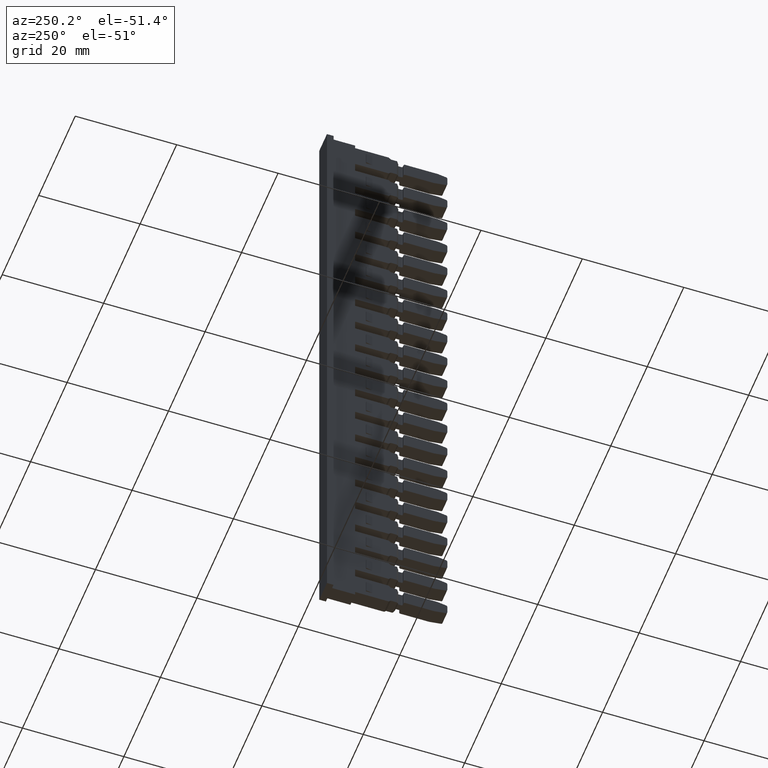
[diagram: clean part render]
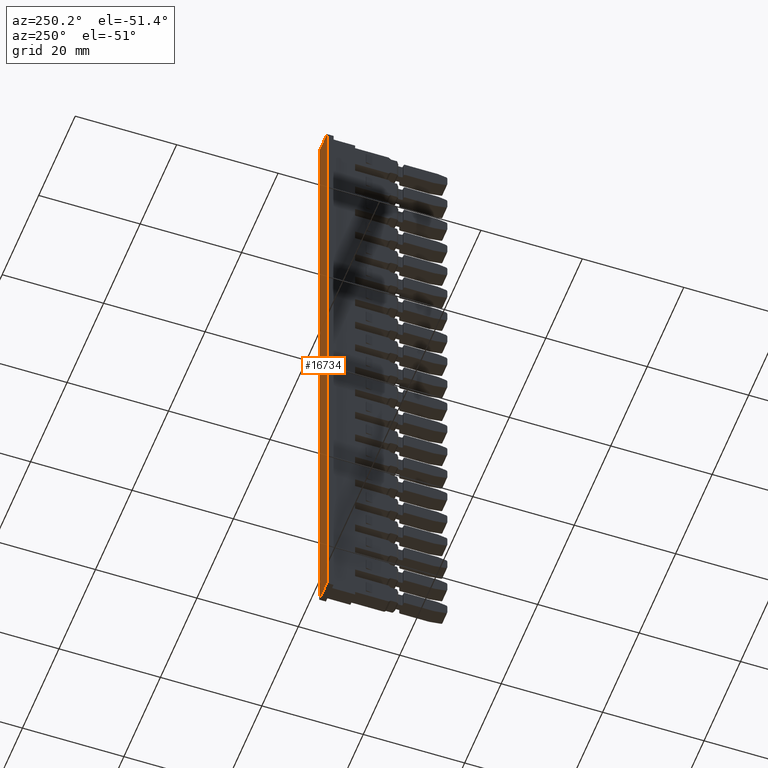
[diagram: same view with one face highlighted and labeled with its STEP entity id]
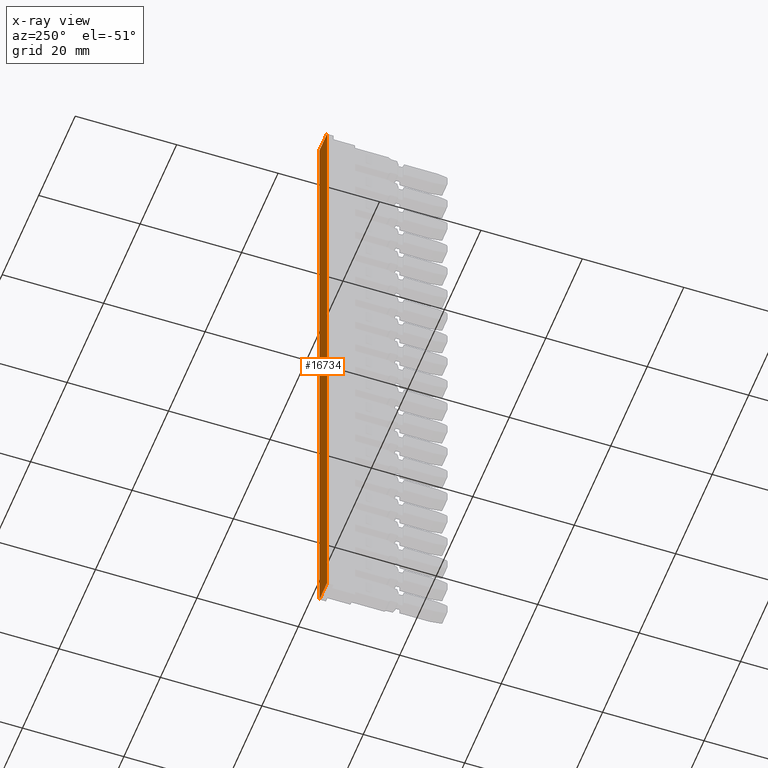
[diagram: x-ray of the same camera — body ghosted, the highlighted face saturated]
A machine part, auxiliary view. The second image highlights one B-rep face of the part: STEP entity #16734.
The next image is the same camera in x-ray: the body ghosted, the highlighted face saturated — about 0% of this face is hidden behind the body in this view.
In plain terms, the highlighted planar face has unit normal (-0, -1, -0).
Its self-contained STEP definition (entity closure, byte-faithful):
#313 = VECTOR ( 'NONE', #13372, 1000.000000000000200 ) ;
#319 = VECTOR ( 'NONE', #13172, 1000.000000000000000 ) ;
#327 = VECTOR ( 'NONE', #13360, 1000.000000000000000 ) ;
#368 = AXIS2_PLACEMENT_3D ( 'NONE', #11932, #11926, #11922 ) ;
#2055 = VECTOR ( 'NONE', #3019, 1000.000000000000000 ) ;
#2974 = LINE ( 'NONE', #3032, #2055 ) ;
#3019 = DIRECTION ( 'NONE',  ( -5.379506530252374700E-033, -5.672277992797063800E-028, 1.000000000000000000 ) ) ;
#3032 = CARTESIAN_POINT ( 'NONE',  ( 1394.182440319829500, 1077.957091196377200, 63.60600222243470400 ) ) ;
#7105 = EDGE_CURVE ( 'NONE', #8284, #8256, #2974, .T. ) ;
#7575 = EDGE_CURVE ( 'NONE', #12866, #12811, #13054, .T. ) ;
#7604 = EDGE_CURVE ( 'NONE', #8284, #12811, #13278, .T. ) ;
#7611 = EDGE_CURVE ( 'NONE', #12866, #8256, #13422, .T. ) ;
#8256 = VERTEX_POINT ( 'NONE', #14058 ) ;
#8284 = VERTEX_POINT ( 'NONE', #14100 ) ;
#9616 = EDGE_LOOP ( 'NONE', ( #22303, #22288, #22273, #22267 ) ) ;
#11893 = PLANE ( 'NONE',  #368 ) ;
#11907 = FACE_OUTER_BOUND ( 'NONE', #9616, .T. ) ;
#11922 = DIRECTION ( 'NONE',  ( 0.9999999999550282000, -9.483855916345691600E-006, 0.0000000000000000000 ) ) ;
#11926 = DIRECTION ( 'NONE',  ( -9.483855916345693300E-006, -0.9999999999550283100, -5.672277993052155700E-028 ) ) ;
#11932 = CARTESIAN_POINT ( 'NONE',  ( 1388.404219510060100, 1077.957145996190800, 63.60600222243470400 ) ) ;
#12811 = VERTEX_POINT ( 'NONE', #14669 ) ;
#12866 = VERTEX_POINT ( 'NONE', #14805 ) ;
#13054 = LINE ( 'NONE', #13221, #319 ) ;
#13172 = DIRECTION ( 'NONE',  ( -5.379506506941585200E-033, 5.672277993817434100E-028, -1.000000000000000000 ) ) ;
#13221 = CARTESIAN_POINT ( 'NONE',  ( 1389.982440319639900, 1077.957131028572100, 63.60600222243470400 ) ) ;
#13244 = CARTESIAN_POINT ( 'NONE',  ( 1394.082440319833900, 1077.957092144721900, -123.6999999999424100 ) ) ;
#13278 = LINE ( 'NONE', #13244, #313 ) ;
#13360 = DIRECTION ( 'NONE',  ( 0.9999999999550282000, -9.483855921954774300E-006, 1.714874837315600700E-015 ) ) ;
#13372 = DIRECTION ( 'NONE',  ( -0.9999999999550282000, 9.483856143999501200E-006, -1.734723475820503000E-015 ) ) ;
#13422 = LINE ( 'NONE', #13427, #327 ) ;
#13427 = CARTESIAN_POINT ( 'NONE',  ( 1394.182440319829500, 1077.957091196374900, 9.800000000002389900 ) ) ;
#14058 = CARTESIAN_POINT ( 'NONE',  ( 1394.182440319829500, 1077.957091196374900, 9.800000000002389900 ) ) ;
#14100 = CARTESIAN_POINT ( 'NONE',  ( 1394.182440319829500, 1077.957091196336300, -123.6999999999424100 ) ) ;
#14669 = CARTESIAN_POINT ( 'NONE',  ( 1389.982440319639900, 1077.957131028532100, -123.6999999999424200 ) ) ;
#14805 = CARTESIAN_POINT ( 'NONE',  ( 1389.982440319639900, 1077.957131028569800, 9.800000000002381000 ) ) ;
#16734 = ADVANCED_FACE ( 'NONE', ( #11907 ), #11893, .F. ) ;
#22267 = ORIENTED_EDGE ( 'NONE', *, *, #7575, .F. ) ;
#22273 = ORIENTED_EDGE ( 'NONE', *, *, #7604, .T. ) ;
#22288 = ORIENTED_EDGE ( 'NONE', *, *, #7105, .F. ) ;
#22303 = ORIENTED_EDGE ( 'NONE', *, *, #7611, .T. ) ;